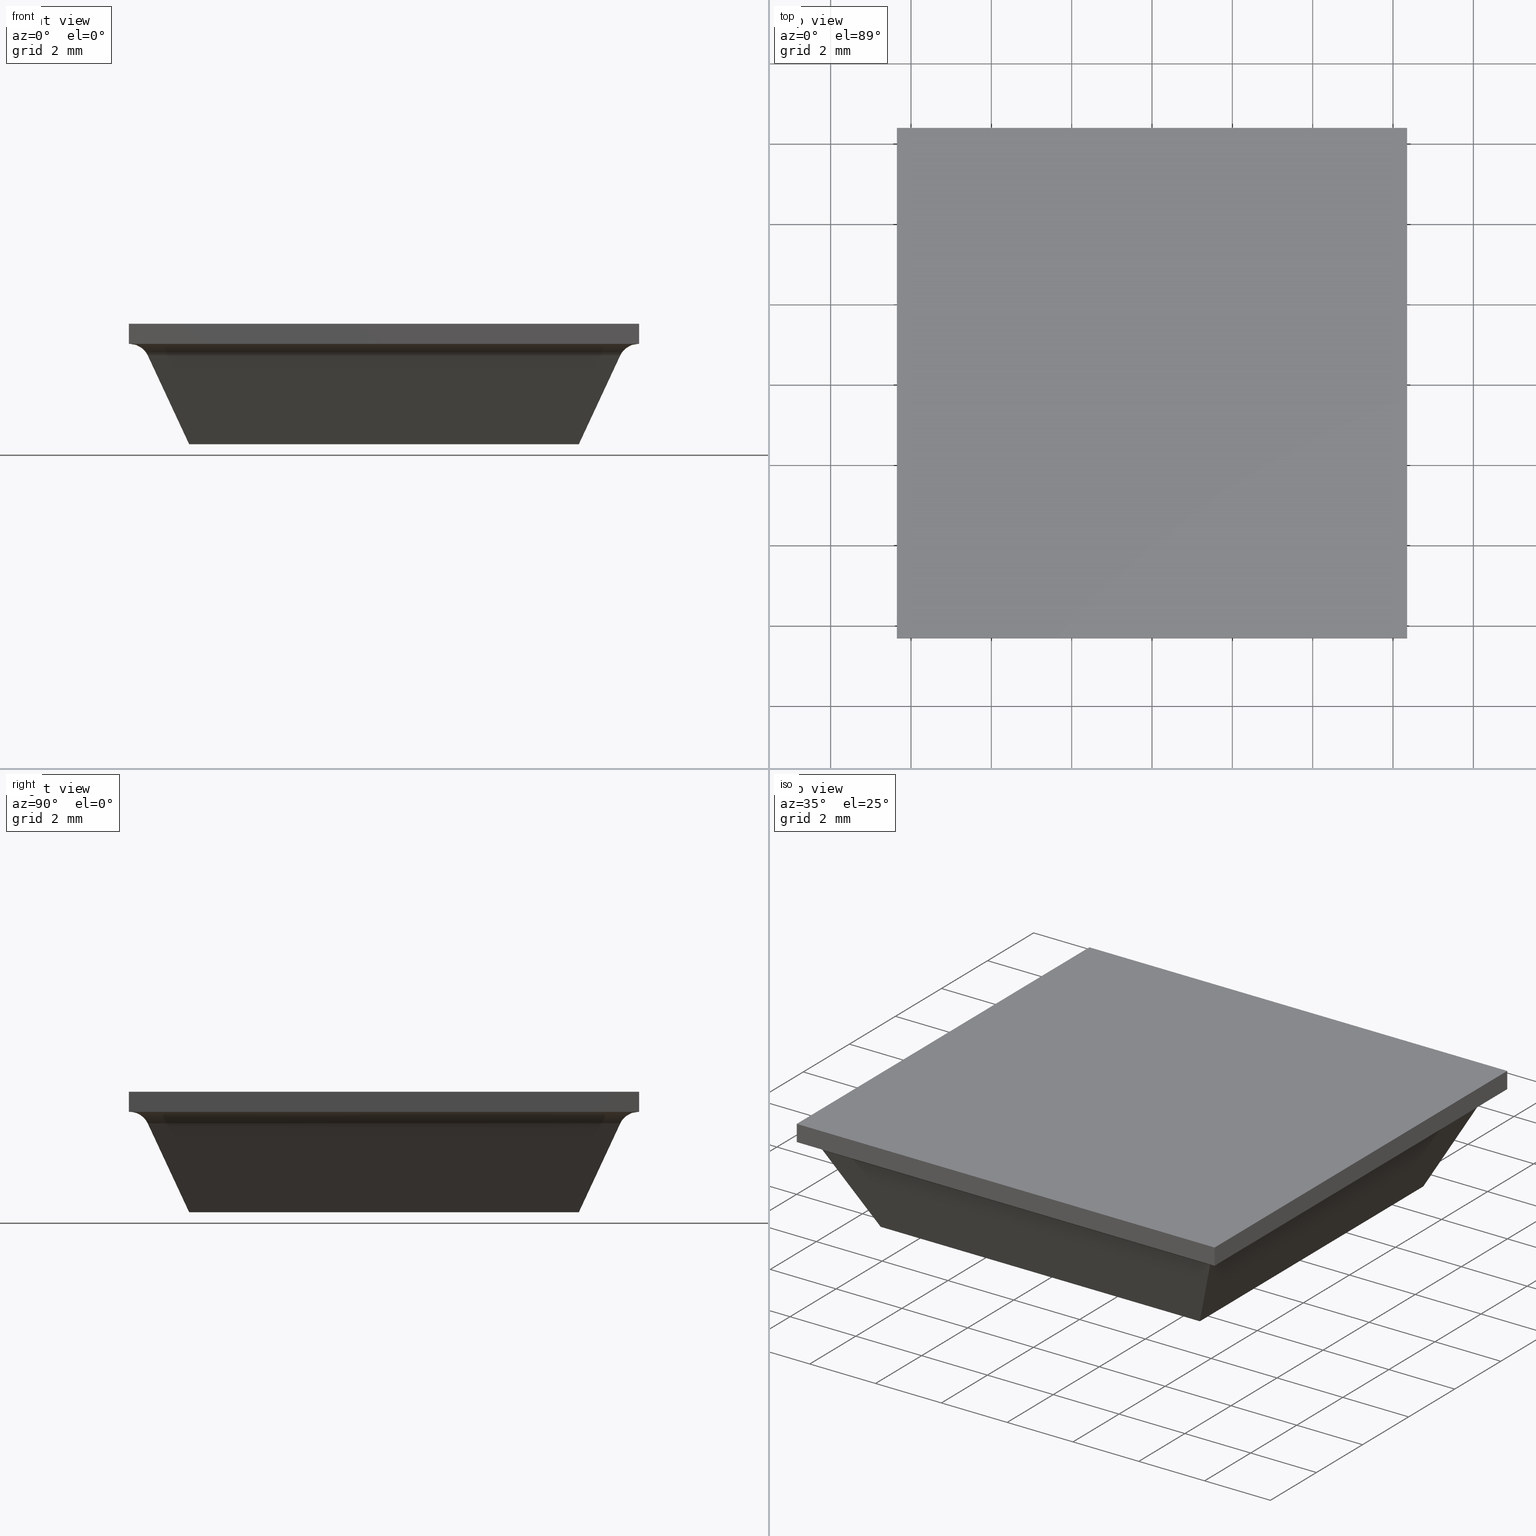
[diagram: canonical four-view strip — front | top / right | iso, engineering-drawing reading convention]
A machine part, canonical four-view strip (front | top / right | iso — engineering-drawing reading convention). The complete STEP part file that produces these views, byte-faithful:
ISO-10303-21;
HEADER;
/****************************************************************
 * Generated by software with PDE/Lib inside                    *
 * PDElib Version 4.4.1-0003, patched  Thursday August 19 11:58 *
 * International Technegroup Inc. (www.iti-oh.com)              *
 ****************************************************************/
FILE_DESCRIPTION((''),'2;1');
FILE_NAME('','2005-12-14T15:44:28',(''),(''),'','CADfix','');
FILE_SCHEMA(('AUTOMOTIVE_DESIGN'));
ENDSEC;
DATA;
#5=APPLICATION_CONTEXT('automotive design');
#6=APPLICATION_PROTOCOL_DEFINITION('Draft International Standard','automotive_design',1998,#5);
#7=PRODUCT_CONTEXT('None',#5,'mechanical');
#8=PRODUCT('rubber foot','','None',(#7));
#9=PRODUCT_RELATED_PRODUCT_CATEGORY('part','description',(#8));
#10=PRODUCT_DEFINITION_FORMATION('None','None',#8);
#11=PRODUCT_DEFINITION_CONTEXT('part definition',#5,'design');
#12=PRODUCT_DEFINITION('None','None',#10,#11);
#18=(NAMED_UNIT(*)PLANE_ANGLE_UNIT()SI_UNIT($,.RADIAN.));
#19=DIMENSIONAL_EXPONENTS(0.0,0.0,0.0,0.0,0.0,0.0,0.0);
#20=PLANE_ANGLE_MEASURE_WITH_UNIT(PLANE_ANGLE_MEASURE(0.017453292500000),#18);
#24=(CONVERSION_BASED_UNIT('DEGREE',#20)NAMED_UNIT(#19)PLANE_ANGLE_UNIT());
#28=(NAMED_UNIT(*)SI_UNIT($,.STERADIAN.)SOLID_ANGLE_UNIT());
#32=(LENGTH_UNIT()NAMED_UNIT(*)SI_UNIT(.MILLI.,.METRE.));
#34=UNCERTAINTY_MEASURE_WITH_UNIT(LENGTH_MEASURE(0.001000000000000),#32,'DISTANCE_ACCURACY_VALUE','');
#36=(GEOMETRIC_REPRESENTATION_CONTEXT(3)GLOBAL_UNCERTAINTY_ASSIGNED_CONTEXT((#34))GLOBAL_UNIT_ASSIGNED_CONTEXT((#24,#28,#32))REPRESENTATION_CONTEXT('None','None'));
#37=AXIS2_PLACEMENT_3D('',#38,#39,#40);
#38=CARTESIAN_POINT('',(0.0,0.0,0.0));
#39=DIRECTION('',(0.0,0.0,1.0));
#40=DIRECTION('',(1.0,0.0,0.0));
#41=ADVANCED_BREP_SHAPE_REPRESENTATION('',(#37,#467),#36);
#42=PRODUCT_DEFINITION_SHAPE('','',#12);
#43=SHAPE_DEFINITION_REPRESENTATION(#42,#41);
#44=CARTESIAN_POINT('',(-6.356113588619676,6.651019152271369,2.499524113393430));
#45=CARTESIAN_POINT('',(-6.356113588619676,-6.658937032214548,2.499524113393430));
#46=CARTESIAN_POINT('',(-6.002646650900663,6.651019152271369,2.514956770922362));
#47=CARTESIAN_POINT('',(-6.002646650900663,-6.658937032214547,2.514956770922362));
#48=CARTESIAN_POINT('',(-5.870493257436940,6.651019152271369,2.186760909317002));
#49=CARTESIAN_POINT('',(-5.870493257436940,-6.658937032214548,2.186760909317002));
#57=(BOUNDED_SURFACE()B_SPLINE_SURFACE(1,2,((#44,#46,#48),(#45,#47,#49)),.UNSPECIFIED.,.F.,.F.,.U.)B_SPLINE_SURFACE_WITH_KNOTS((2,2),(3,3),(0.0,13.309956184485920),(0.0,0.978809905743040),.UNSPECIFIED.)GEOMETRIC_REPRESENTATION_ITEM()RATIONAL_B_SPLINE_SURFACE(((1.0,0.813063942265620,0.992077614633168),(1.0,0.813063942265620,0.992077614633168)))REPRESENTATION_ITEM('')SURFACE());
#58=CARTESIAN_POINT('',(-5.881150035810770,-5.881150035810910,2.211309076796455));
#59=VERTEX_POINT('',#58);
#60=CARTESIAN_POINT('',(-6.334303954544160,-6.334303954544160,2.500000000000000));
#61=VERTEX_POINT('',#60);
#62=CARTESIAN_POINT('',(-5.881150035810770,-5.881150035810910,2.211309076796455));
#63=CARTESIAN_POINT('',(-6.015768782200882,-6.015768782200882,2.500000000000001));
#64=CARTESIAN_POINT('',(-6.334303954544160,-6.334303954544160,2.500000000000000));
#72=(BOUNDED_CURVE()B_SPLINE_CURVE(2,(#62,#63,#64),.UNSPECIFIED.,.F.,.U.)CURVE()GEOMETRIC_REPRESENTATION_ITEM()QUASI_UNIFORM_CURVE()RATIONAL_B_SPLINE_CURVE((1.0,0.843391413755473,1.0))REPRESENTATION_ITEM(''));
#73=EDGE_CURVE('',#59,#61,#72,.T.);
#74=ORIENTED_EDGE('',*,*,#73,.T.);
#75=CARTESIAN_POINT('',(-6.334303954544160,6.334303954544160,2.500000000000000));
#76=VERTEX_POINT('',#75);
#77=CARTESIAN_POINT('',(-6.334303954544160,6.334303954544160,2.500000000000000));
#78=CARTESIAN_POINT('',(-6.334303954544160,-6.334303954544160,2.500000000000000));
#79=QUASI_UNIFORM_CURVE('',1,(#77,#78),.UNSPECIFIED.,.F.,.U.);
#80=EDGE_CURVE('',#76,#61,#79,.T.);
#81=ORIENTED_EDGE('',*,*,#80,.F.);
#82=CARTESIAN_POINT('',(-5.881150035810800,5.881150035810720,2.211309076796510));
#83=VERTEX_POINT('',#82);
#84=CARTESIAN_POINT('',(-6.334303954544160,6.334303954544160,2.500000000000000));
#85=CARTESIAN_POINT('',(-6.015768782200872,6.015768782200872,2.500000000000001));
#86=CARTESIAN_POINT('',(-5.881150035810800,5.881150035810720,2.211309076796510));
#94=(BOUNDED_CURVE()B_SPLINE_CURVE(2,(#84,#85,#86),.UNSPECIFIED.,.F.,.U.)CURVE()GEOMETRIC_REPRESENTATION_ITEM()QUASI_UNIFORM_CURVE()RATIONAL_B_SPLINE_CURVE((1.0,0.843391413755463,1.0))REPRESENTATION_ITEM(''));
#95=EDGE_CURVE('',#76,#83,#94,.T.);
#96=ORIENTED_EDGE('',*,*,#95,.T.);
#97=CARTESIAN_POINT('',(-5.881150035810770,-5.881150035810910,2.211309076796455));
#98=CARTESIAN_POINT('',(-5.881150035810800,5.881150035810720,2.211309076796510));
#99=QUASI_UNIFORM_CURVE('',1,(#97,#98),.UNSPECIFIED.,.F.,.U.);
#100=EDGE_CURVE('',#59,#83,#99,.T.);
#101=ORIENTED_EDGE('',*,*,#100,.F.);
#102=EDGE_LOOP('',(#74,#81,#96,#101));
#103=FACE_OUTER_BOUND('',#102,.T.);
#104=ADVANCED_FACE('',(#103),#57,.F.);
#105=CARTESIAN_POINT('',(6.651019152271369,6.356113588619705,2.499524113393429));
#106=CARTESIAN_POINT('',(-6.658937032214548,6.356113588619705,2.499524113393429));
#107=CARTESIAN_POINT('',(6.651019152271369,6.002646650900690,2.514956770922382));
#108=CARTESIAN_POINT('',(-6.658937032214547,6.002646650900690,2.514956770922382));
#109=CARTESIAN_POINT('',(6.651019152271369,5.870493257436951,2.186760909317028));
#110=CARTESIAN_POINT('',(-6.658937032214548,5.870493257436951,2.186760909317028));
#118=(BOUNDED_SURFACE()B_SPLINE_SURFACE(1,2,((#105,#107,#109),(#106,#108,#110)),.UNSPECIFIED.,.F.,.F.,.U.)B_SPLINE_SURFACE_WITH_KNOTS((2,2),(3,3),(0.0,13.309956184485920),(0.0,0.978809905743040),.UNSPECIFIED.)GEOMETRIC_REPRESENTATION_ITEM()RATIONAL_B_SPLINE_SURFACE(((1.0,0.813063942265620,0.992077614633168),(1.0,0.813063942265620,0.992077614633168)))REPRESENTATION_ITEM('')SURFACE());
#119=CARTESIAN_POINT('',(6.334303954544160,6.334303954544160,2.500000000000000));
#120=VERTEX_POINT('',#119);
#121=CARTESIAN_POINT('',(5.881150035810720,5.881150035810800,2.211309076796510));
#122=VERTEX_POINT('',#121);
#123=CARTESIAN_POINT('',(6.334303954544160,6.334303954544160,2.500000000000000));
#124=CARTESIAN_POINT('',(6.015768782200872,6.015768782200872,2.500000000000001));
#125=CARTESIAN_POINT('',(5.881150035810720,5.881150035810800,2.211309076796510));
#133=(BOUNDED_CURVE()B_SPLINE_CURVE(2,(#123,#124,#125),.UNSPECIFIED.,.F.,.U.)CURVE()GEOMETRIC_REPRESENTATION_ITEM()QUASI_UNIFORM_CURVE()RATIONAL_B_SPLINE_CURVE((1.0,0.843391413755463,1.0))REPRESENTATION_ITEM(''));
#134=EDGE_CURVE('',#120,#122,#133,.T.);
#135=ORIENTED_EDGE('',*,*,#134,.T.);
#136=CARTESIAN_POINT('',(-5.881150035810800,5.881150035810720,2.211309076796510));
#137=CARTESIAN_POINT('',(5.881150035810720,5.881150035810800,2.211309076796510));
#138=QUASI_UNIFORM_CURVE('',1,(#136,#137),.UNSPECIFIED.,.F.,.U.);
#139=EDGE_CURVE('',#83,#122,#138,.T.);
#140=ORIENTED_EDGE('',*,*,#139,.F.);
#141=ORIENTED_EDGE('',*,*,#95,.F.);
#142=CARTESIAN_POINT('',(6.334303954544160,6.334303954544160,2.500000000000000));
#143=CARTESIAN_POINT('',(-6.334303954544160,6.334303954544160,2.500000000000000));
#144=QUASI_UNIFORM_CURVE('',1,(#142,#143),.UNSPECIFIED.,.F.,.U.);
#145=EDGE_CURVE('',#120,#76,#144,.T.);
#146=ORIENTED_EDGE('',*,*,#145,.F.);
#147=EDGE_LOOP('',(#135,#140,#141,#146));
#148=FACE_OUTER_BOUND('',#147,.T.);
#149=ADVANCED_FACE('',(#148),#118,.F.);
#150=CARTESIAN_POINT('',(-6.651019152271369,-6.347392428698098,2.499828662487778));
#151=CARTESIAN_POINT('',(6.658937032214548,-6.347392428698098,2.499828662487778));
#152=CARTESIAN_POINT('',(-6.651019152271368,-6.000215764091201,2.508919803397826));
#153=CARTESIAN_POINT('',(6.658937032214548,-6.000215764091201,2.508919803397826));
#154=CARTESIAN_POINT('',(-6.651019152271369,-5.870493255542651,2.186760904612636));
#155=CARTESIAN_POINT('',(6.658937032214548,-5.870493255542651,2.186760904612636));
#163=(BOUNDED_SURFACE()B_SPLINE_SURFACE(1,2,((#150,#152,#154),(#151,#153,#155)),.UNSPECIFIED.,.F.,.F.,.U.)B_SPLINE_SURFACE_WITH_KNOTS((2,2),(3,3),(0.0,13.309956184485920),(0.0,0.993420241738949),.UNSPECIFIED.)GEOMETRIC_REPRESENTATION_ITEM()RATIONAL_B_SPLINE_SURFACE(((1.0,0.820341980119575,0.997635787319055),(1.0,0.820341980119575,0.997635787319055)))REPRESENTATION_ITEM('')SURFACE());
#164=CARTESIAN_POINT('',(5.881150035810800,-5.881150035810720,2.211309076796510));
#165=VERTEX_POINT('',#164);
#166=CARTESIAN_POINT('',(6.334303954544160,-6.334303954544160,2.500000000000000));
#167=VERTEX_POINT('',#166);
#168=CARTESIAN_POINT('',(5.881150035810800,-5.881150035810720,2.211309076796510));
#169=CARTESIAN_POINT('',(6.015768782200871,-6.015768782200871,2.500000000000000));
#170=CARTESIAN_POINT('',(6.334303954544160,-6.334303954544160,2.500000000000000));
#178=(BOUNDED_CURVE()B_SPLINE_CURVE(2,(#168,#169,#170),.UNSPECIFIED.,.F.,.U.)CURVE()GEOMETRIC_REPRESENTATION_ITEM()QUASI_UNIFORM_CURVE()RATIONAL_B_SPLINE_CURVE((1.0,0.843391413755462,1.0))REPRESENTATION_ITEM(''));
#179=EDGE_CURVE('',#165,#167,#178,.T.);
#180=ORIENTED_EDGE('',*,*,#179,.T.);
#181=CARTESIAN_POINT('',(-6.334303954544160,-6.334303954544160,2.500000000000000));
#182=CARTESIAN_POINT('',(6.334303954544160,-6.334303954544160,2.500000000000000));
#183=QUASI_UNIFORM_CURVE('',1,(#181,#182),.UNSPECIFIED.,.F.,.U.);
#184=EDGE_CURVE('',#61,#167,#183,.T.);
#185=ORIENTED_EDGE('',*,*,#184,.F.);
#186=ORIENTED_EDGE('',*,*,#73,.F.);
#187=CARTESIAN_POINT('',(5.881150035810800,-5.881150035810720,2.211309076796510));
#188=CARTESIAN_POINT('',(-5.881150035810770,-5.881150035810910,2.211309076796455));
#189=QUASI_UNIFORM_CURVE('',1,(#187,#188),.UNSPECIFIED.,.F.,.U.);
#190=EDGE_CURVE('',#165,#59,#189,.T.);
#191=ORIENTED_EDGE('',*,*,#190,.F.);
#192=EDGE_LOOP('',(#180,#185,#186,#191));
#193=FACE_OUTER_BOUND('',#192,.T.);
#194=ADVANCED_FACE('',(#193),#163,.F.);
#195=CARTESIAN_POINT('',(6.356113588619705,-6.651019152271369,2.499524113393429));
#196=CARTESIAN_POINT('',(6.356113588619705,6.658937032214548,2.499524113393429));
#197=CARTESIAN_POINT('',(6.002646650900690,-6.651019152271369,2.514956770922382));
#198=CARTESIAN_POINT('',(6.002646650900690,6.658937032214547,2.514956770922382));
#199=CARTESIAN_POINT('',(5.870493257436951,-6.651019152271369,2.186760909317028));
#200=CARTESIAN_POINT('',(5.870493257436951,6.658937032214548,2.186760909317028));
#208=(BOUNDED_SURFACE()B_SPLINE_SURFACE(1,2,((#195,#197,#199),(#196,#198,#200)),.UNSPECIFIED.,.F.,.F.,.U.)B_SPLINE_SURFACE_WITH_KNOTS((2,2),(3,3),(0.0,13.309956184485920),(0.0,0.978809905743040),.UNSPECIFIED.)GEOMETRIC_REPRESENTATION_ITEM()RATIONAL_B_SPLINE_SURFACE(((1.0,0.813063942265620,0.992077614633168),(1.0,0.813063942265620,0.992077614633168)))REPRESENTATION_ITEM('')SURFACE());
#209=ORIENTED_EDGE('',*,*,#134,.F.);
#210=CARTESIAN_POINT('',(6.334303954544160,-6.334303954544160,2.500000000000000));
#211=CARTESIAN_POINT('',(6.334303954544160,6.334303954544160,2.500000000000000));
#212=QUASI_UNIFORM_CURVE('',1,(#210,#211),.UNSPECIFIED.,.F.,.U.);
#213=EDGE_CURVE('',#167,#120,#212,.T.);
#214=ORIENTED_EDGE('',*,*,#213,.F.);
#215=ORIENTED_EDGE('',*,*,#179,.F.);
#216=CARTESIAN_POINT('',(5.881150035810720,5.881150035810800,2.211309076796510));
#217=CARTESIAN_POINT('',(5.881150035810800,-5.881150035810720,2.211309076796510));
#218=QUASI_UNIFORM_CURVE('',1,(#216,#217),.UNSPECIFIED.,.F.,.U.);
#219=EDGE_CURVE('',#122,#165,#218,.T.);
#220=ORIENTED_EDGE('',*,*,#219,.F.);
#221=EDGE_LOOP('',(#209,#214,#215,#220));
#222=FACE_OUTER_BOUND('',#221,.T.);
#223=ADVANCED_FACE('',(#222),#208,.F.);
#224=CARTESIAN_POINT('',(-6.468677122422763,-5.932656065218259,2.321764147720237));
#225=CARTESIAN_POINT('',(-6.468677122422763,-4.798494025907728,-0.110454952299864));
#226=CARTESIAN_POINT('',(6.468677227585948,-5.932656065218259,2.321764147720237));
#227=CARTESIAN_POINT('',(6.468677227585948,-4.798494025907728,-0.110454952299864));
#228=B_SPLINE_SURFACE_WITH_KNOTS('',1,1,((#224,#226),(#225,#227)),.UNSPECIFIED.,.F.,.F.,.U.,(2,2),(2,2),(0.0,2.683656699713213),(0.0,12.937354350008709),.UNSPECIFIED.);
#229=CARTESIAN_POINT('',(4.850000000000001,-4.850000000000001,0.0));
#230=VERTEX_POINT('',#229);
#231=CARTESIAN_POINT('',(5.881150035810800,-5.881150035810720,2.211309076796510));
#232=CARTESIAN_POINT('',(4.850000000000001,-4.850000000000001,0.0));
#233=QUASI_UNIFORM_CURVE('',1,(#231,#232),.UNSPECIFIED.,.F.,.U.);
#234=EDGE_CURVE('',#165,#230,#233,.T.);
#235=ORIENTED_EDGE('',*,*,#234,.F.);
#236=ORIENTED_EDGE('',*,*,#190,.T.);
#237=CARTESIAN_POINT('',(-4.850000000000001,-4.850000000000001,0.0));
#238=VERTEX_POINT('',#237);
#239=CARTESIAN_POINT('',(-4.850000000000001,-4.850000000000001,0.0));
#240=CARTESIAN_POINT('',(-5.881150035810770,-5.881150035810910,2.211309076796455));
#241=QUASI_UNIFORM_CURVE('',1,(#239,#240),.UNSPECIFIED.,.F.,.U.);
#242=EDGE_CURVE('',#238,#59,#241,.T.);
#243=ORIENTED_EDGE('',*,*,#242,.F.);
#244=CARTESIAN_POINT('',(4.850000000000001,-4.850000000000001,0.0));
#245=CARTESIAN_POINT('',(-4.850000000000001,-4.850000000000001,0.0));
#246=QUASI_UNIFORM_CURVE('',1,(#244,#245),.UNSPECIFIED.,.F.,.U.);
#247=EDGE_CURVE('',#230,#238,#246,.T.);
#248=ORIENTED_EDGE('',*,*,#247,.F.);
#249=EDGE_LOOP('',(#235,#236,#243,#248));
#250=FACE_OUTER_BOUND('',#249,.T.);
#251=ADVANCED_FACE('',(#250),#228,.T.);
#252=CARTESIAN_POINT('',(6.984364856166421,-6.984364856166422,2.500000000000000));
#253=CARTESIAN_POINT('',(-6.984365310353813,-6.984364856166422,2.500000000000000));
#254=CARTESIAN_POINT('',(6.984364856166421,6.984365310353814,2.500000000000000));
#255=CARTESIAN_POINT('',(-6.984365310353814,6.984365310353814,2.500000000000000));
#256=B_SPLINE_SURFACE_WITH_KNOTS('',1,1,((#252,#254),(#253,#255)),.UNSPECIFIED.,.F.,.F.,.U.,(2,2),(2,2),(0.0,13.968730166520240),(0.0,13.968730166520240),.UNSPECIFIED.);
#257=CARTESIAN_POINT('',(6.350000000000000,-6.350000000000000,2.500000000000000));
#258=VERTEX_POINT('',#257);
#259=CARTESIAN_POINT('',(6.350000000000000,6.350000000000000,2.500000000000000));
#260=VERTEX_POINT('',#259);
#261=CARTESIAN_POINT('',(6.350000000000000,-6.350000000000000,2.500000000000000));
#262=CARTESIAN_POINT('',(6.350000000000000,6.350000000000000,2.500000000000000));
#263=QUASI_UNIFORM_CURVE('',1,(#261,#262),.UNSPECIFIED.,.F.,.U.);
#264=EDGE_CURVE('',#258,#260,#263,.T.);
#265=ORIENTED_EDGE('',*,*,#264,.F.);
#266=CARTESIAN_POINT('',(-6.350000000000000,-6.350000000000000,2.500000000000000));
#267=VERTEX_POINT('',#266);
#268=CARTESIAN_POINT('',(6.350000000000000,-6.350000000000000,2.500000000000000));
#269=CARTESIAN_POINT('',(-6.350000000000000,-6.350000000000000,2.500000000000000));
#270=QUASI_UNIFORM_CURVE('',1,(#268,#269),.UNSPECIFIED.,.F.,.U.);
#271=EDGE_CURVE('',#258,#267,#270,.T.);
#272=ORIENTED_EDGE('',*,*,#271,.T.);
#273=CARTESIAN_POINT('',(-6.350000000000000,6.350000000000000,2.500000000000000));
#274=VERTEX_POINT('',#273);
#275=CARTESIAN_POINT('',(-6.350000000000000,-6.350000000000000,2.500000000000000));
#276=CARTESIAN_POINT('',(-6.350000000000000,6.350000000000000,2.500000000000000));
#277=QUASI_UNIFORM_CURVE('',1,(#275,#276),.UNSPECIFIED.,.F.,.U.);
#278=EDGE_CURVE('',#267,#274,#277,.T.);
#279=ORIENTED_EDGE('',*,*,#278,.T.);
#280=CARTESIAN_POINT('',(6.350000000000000,6.350000000000000,2.500000000000000));
#281=CARTESIAN_POINT('',(-6.350000000000000,6.350000000000000,2.500000000000000));
#282=QUASI_UNIFORM_CURVE('',1,(#280,#281),.UNSPECIFIED.,.F.,.U.);
#283=EDGE_CURVE('',#260,#274,#282,.T.);
#284=ORIENTED_EDGE('',*,*,#283,.F.);
#285=EDGE_LOOP('',(#265,#272,#279,#284));
#286=FACE_OUTER_BOUND('',#285,.T.);
#287=ORIENTED_EDGE('',*,*,#145,.T.);
#288=ORIENTED_EDGE('',*,*,#80,.T.);
#289=ORIENTED_EDGE('',*,*,#184,.T.);
#290=ORIENTED_EDGE('',*,*,#213,.T.);
#291=EDGE_LOOP('',(#287,#288,#289,#290));
#292=FACE_BOUND('',#291,.T.);
#293=ADVANCED_FACE('',(#286,#292),#256,.T.);
#294=CARTESIAN_POINT('',(-6.984364856166421,-6.984364856166422,3.0));
#295=CARTESIAN_POINT('',(6.984365310353813,-6.984364856166422,3.0));
#296=CARTESIAN_POINT('',(-6.984364856166421,6.984365310353814,3.0));
#297=CARTESIAN_POINT('',(6.984365310353814,6.984365310353814,3.0));
#298=B_SPLINE_SURFACE_WITH_KNOTS('',1,1,((#294,#296),(#295,#297)),.UNSPECIFIED.,.F.,.F.,.U.,(2,2),(2,2),(0.0,13.968730166520240),(0.0,13.968730166520240),.UNSPECIFIED.);
#299=CARTESIAN_POINT('',(-6.350000000000000,-6.350000000000000,3.0));
#300=VERTEX_POINT('',#299);
#301=CARTESIAN_POINT('',(6.350000000000000,-6.350000000000000,3.0));
#302=VERTEX_POINT('',#301);
#303=CARTESIAN_POINT('',(-6.350000000000000,-6.350000000000000,3.0));
#304=CARTESIAN_POINT('',(6.350000000000000,-6.350000000000000,3.0));
#305=QUASI_UNIFORM_CURVE('',1,(#303,#304),.UNSPECIFIED.,.F.,.U.);
#306=EDGE_CURVE('',#300,#302,#305,.T.);
#307=ORIENTED_EDGE('',*,*,#306,.T.);
#308=CARTESIAN_POINT('',(6.350000000000000,6.350000000000000,3.0));
#309=VERTEX_POINT('',#308);
#310=CARTESIAN_POINT('',(6.350000000000000,-6.350000000000000,3.0));
#311=CARTESIAN_POINT('',(6.350000000000000,6.350000000000000,3.0));
#312=QUASI_UNIFORM_CURVE('',1,(#310,#311),.UNSPECIFIED.,.F.,.U.);
#313=EDGE_CURVE('',#302,#309,#312,.T.);
#314=ORIENTED_EDGE('',*,*,#313,.T.);
#315=CARTESIAN_POINT('',(-6.350000000000000,6.350000000000000,3.0));
#316=VERTEX_POINT('',#315);
#317=CARTESIAN_POINT('',(6.350000000000000,6.350000000000000,3.0));
#318=CARTESIAN_POINT('',(-6.350000000000000,6.350000000000000,3.0));
#319=QUASI_UNIFORM_CURVE('',1,(#317,#318),.UNSPECIFIED.,.F.,.U.);
#320=EDGE_CURVE('',#309,#316,#319,.T.);
#321=ORIENTED_EDGE('',*,*,#320,.T.);
#322=CARTESIAN_POINT('',(-6.350000000000000,6.350000000000000,3.0));
#323=CARTESIAN_POINT('',(-6.350000000000000,-6.350000000000000,3.0));
#324=QUASI_UNIFORM_CURVE('',1,(#322,#323),.UNSPECIFIED.,.F.,.U.);
#325=EDGE_CURVE('',#316,#300,#324,.T.);
#326=ORIENTED_EDGE('',*,*,#325,.T.);
#327=EDGE_LOOP('',(#307,#314,#321,#326));
#328=FACE_OUTER_BOUND('',#327,.T.);
#329=ADVANCED_FACE('',(#328),#298,.T.);
#330=CARTESIAN_POINT('',(-6.350000000000000,-6.984364856166422,3.024974999030904));
#331=CARTESIAN_POINT('',(-6.350000000000000,-6.984364856166422,2.475024987558052));
#332=CARTESIAN_POINT('',(-6.350000000000000,6.984365310353814,3.024974999030904));
#333=CARTESIAN_POINT('',(-6.350000000000000,6.984365310353814,2.475024987558052));
#334=B_SPLINE_SURFACE_WITH_KNOTS('',1,1,((#330,#332),(#331,#333)),.UNSPECIFIED.,.F.,.F.,.U.,(2,2),(2,2),(0.041708334948495,0.958291687403247),(0.0,13.968730166520240),.UNSPECIFIED.);
#335=ORIENTED_EDGE('',*,*,#278,.F.);
#336=CARTESIAN_POINT('',(-6.350000000000000,-6.350000000000000,3.0));
#337=CARTESIAN_POINT('',(-6.350000000000000,-6.350000000000000,2.500000000000000));
#338=QUASI_UNIFORM_CURVE('',1,(#336,#337),.UNSPECIFIED.,.F.,.U.);
#339=EDGE_CURVE('',#300,#267,#338,.T.);
#340=ORIENTED_EDGE('',*,*,#339,.F.);
#341=ORIENTED_EDGE('',*,*,#325,.F.);
#342=CARTESIAN_POINT('',(-6.350000000000000,6.350000000000000,3.0));
#343=CARTESIAN_POINT('',(-6.350000000000000,6.350000000000000,2.500000000000000));
#344=QUASI_UNIFORM_CURVE('',1,(#342,#343),.UNSPECIFIED.,.F.,.U.);
#345=EDGE_CURVE('',#316,#274,#344,.T.);
#346=ORIENTED_EDGE('',*,*,#345,.T.);
#347=EDGE_LOOP('',(#335,#340,#341,#346));
#348=FACE_OUTER_BOUND('',#347,.T.);
#349=ADVANCED_FACE('',(#348),#334,.F.);
#350=CARTESIAN_POINT('',(-6.984364856166422,6.350000000000000,3.024974999030904));
#351=CARTESIAN_POINT('',(-6.984364856166422,6.350000000000000,2.475024987558052));
#352=CARTESIAN_POINT('',(6.984365310353814,6.350000000000000,3.024974999030904));
#353=CARTESIAN_POINT('',(6.984365310353814,6.350000000000000,2.475024987558052));
#354=B_SPLINE_SURFACE_WITH_KNOTS('',1,1,((#350,#352),(#351,#353)),.UNSPECIFIED.,.F.,.F.,.U.,(2,2),(2,2),(0.041708334948495,0.958291687403247),(0.0,13.968730166520240),.UNSPECIFIED.);
#355=CARTESIAN_POINT('',(6.350000000000000,6.350000000000000,3.0));
#356=CARTESIAN_POINT('',(6.350000000000000,6.350000000000000,2.500000000000000));
#357=QUASI_UNIFORM_CURVE('',1,(#355,#356),.UNSPECIFIED.,.F.,.U.);
#358=EDGE_CURVE('',#309,#260,#357,.T.);
#359=ORIENTED_EDGE('',*,*,#358,.T.);
#360=ORIENTED_EDGE('',*,*,#283,.T.);
#361=ORIENTED_EDGE('',*,*,#345,.F.);
#362=ORIENTED_EDGE('',*,*,#320,.F.);
#363=EDGE_LOOP('',(#359,#360,#361,#362));
#364=FACE_OUTER_BOUND('',#363,.T.);
#365=ADVANCED_FACE('',(#364),#354,.F.);
#366=CARTESIAN_POINT('',(-6.468677122422789,4.798494034666431,-0.110454933516765));
#367=CARTESIAN_POINT('',(-6.468677122422789,5.932656084117161,2.321764188249071));
#368=CARTESIAN_POINT('',(6.468677227585866,4.798494034666431,-0.110454933516765));
#369=CARTESIAN_POINT('',(6.468677227585866,5.932656084117161,2.321764188249071));
#370=B_SPLINE_SURFACE_WITH_KNOTS('',1,1,((#366,#368),(#367,#369)),.UNSPECIFIED.,.F.,.F.,.U.,(2,2),(2,2),(0.0,2.683656723706974),(0.0,12.937354350008651),.UNSPECIFIED.);
#371=CARTESIAN_POINT('',(-4.850000000000001,4.850000000000001,0.0));
#372=VERTEX_POINT('',#371);
#373=CARTESIAN_POINT('',(-5.881150035810800,5.881150035810720,2.211309076796510));
#374=CARTESIAN_POINT('',(-4.850000000000001,4.850000000000001,0.0));
#375=QUASI_UNIFORM_CURVE('',1,(#373,#374),.UNSPECIFIED.,.F.,.U.);
#376=EDGE_CURVE('',#83,#372,#375,.T.);
#377=ORIENTED_EDGE('',*,*,#376,.F.);
#378=ORIENTED_EDGE('',*,*,#139,.T.);
#379=CARTESIAN_POINT('',(4.850000000000001,4.850000000000001,0.0));
#380=VERTEX_POINT('',#379);
#381=CARTESIAN_POINT('',(5.881150035810720,5.881150035810800,2.211309076796510));
#382=CARTESIAN_POINT('',(4.850000000000001,4.850000000000001,0.0));
#383=QUASI_UNIFORM_CURVE('',1,(#381,#382),.UNSPECIFIED.,.F.,.U.);
#384=EDGE_CURVE('',#122,#380,#383,.T.);
#385=ORIENTED_EDGE('',*,*,#384,.T.);
#386=CARTESIAN_POINT('',(-4.850000000000001,4.850000000000001,0.0));
#387=CARTESIAN_POINT('',(4.850000000000001,4.850000000000001,0.0));
#388=QUASI_UNIFORM_CURVE('',1,(#386,#387),.UNSPECIFIED.,.F.,.U.);
#389=EDGE_CURVE('',#372,#380,#388,.T.);
#390=ORIENTED_EDGE('',*,*,#389,.F.);
#391=EDGE_LOOP('',(#377,#378,#385,#390));
#392=FACE_OUTER_BOUND('',#391,.T.);
#393=ADVANCED_FACE('',(#392),#370,.T.);
#394=CARTESIAN_POINT('',(6.350000000000000,-6.984364856166422,2.475025000969097));
#395=CARTESIAN_POINT('',(6.350000000000000,-6.984364856166422,3.024975012441949));
#396=CARTESIAN_POINT('',(6.350000000000000,6.984365310353814,2.475025000969097));
#397=CARTESIAN_POINT('',(6.350000000000000,6.984365310353814,3.024975012441949));
#398=B_SPLINE_SURFACE_WITH_KNOTS('',1,1,((#394,#396),(#395,#397)),.UNSPECIFIED.,.F.,.F.,.U.,(2,2),(2,2),(0.041708334948495,0.958291687403247),(0.0,13.968730166520240),.UNSPECIFIED.);
#399=CARTESIAN_POINT('',(6.350000000000000,-6.350000000000000,3.0));
#400=CARTESIAN_POINT('',(6.350000000000000,-6.350000000000000,2.500000000000000));
#401=QUASI_UNIFORM_CURVE('',1,(#399,#400),.UNSPECIFIED.,.F.,.U.);
#402=EDGE_CURVE('',#302,#258,#401,.T.);
#403=ORIENTED_EDGE('',*,*,#402,.T.);
#404=ORIENTED_EDGE('',*,*,#264,.T.);
#405=ORIENTED_EDGE('',*,*,#358,.F.);
#406=ORIENTED_EDGE('',*,*,#313,.F.);
#407=EDGE_LOOP('',(#403,#404,#405,#406));
#408=FACE_OUTER_BOUND('',#407,.T.);
#409=ADVANCED_FACE('',(#408),#398,.F.);
#410=CARTESIAN_POINT('',(5.932656065218262,-6.468677122422708,2.321764147720240));
#411=CARTESIAN_POINT('',(4.798494025907729,-6.468677122422708,-0.110454952299864));
#412=CARTESIAN_POINT('',(5.932656065218263,6.468677227585945,2.321764147720240));
#413=CARTESIAN_POINT('',(4.798494025907729,6.468677227585945,-0.110454952299864));
#414=B_SPLINE_SURFACE_WITH_KNOTS('',1,1,((#410,#412),(#411,#413)),.UNSPECIFIED.,.F.,.F.,.U.,(2,2),(2,2),(0.0,2.683656699713217),(0.0,12.937354350008651),.UNSPECIFIED.);
#415=ORIENTED_EDGE('',*,*,#384,.F.);
#416=ORIENTED_EDGE('',*,*,#219,.T.);
#417=ORIENTED_EDGE('',*,*,#234,.T.);
#418=CARTESIAN_POINT('',(4.850000000000001,4.850000000000001,0.0));
#419=CARTESIAN_POINT('',(4.850000000000001,-4.850000000000001,0.0));
#420=QUASI_UNIFORM_CURVE('',1,(#418,#419),.UNSPECIFIED.,.F.,.U.);
#421=EDGE_CURVE('',#380,#230,#420,.T.);
#422=ORIENTED_EDGE('',*,*,#421,.F.);
#423=EDGE_LOOP('',(#415,#416,#417,#422));
#424=FACE_OUTER_BOUND('',#423,.T.);
#425=ADVANCED_FACE('',(#424),#414,.T.);
#426=CARTESIAN_POINT('',(-4.798494034666430,-6.468677122422904,-0.110454933516765));
#427=CARTESIAN_POINT('',(-5.932656084117160,-6.468677122422904,2.321764188249071));
#428=CARTESIAN_POINT('',(-4.798494034666430,6.468677227585872,-0.110454933516765));
#429=CARTESIAN_POINT('',(-5.932656084117161,6.468677227585872,2.321764188249071));
#430=B_SPLINE_SURFACE_WITH_KNOTS('',1,1,((#426,#428),(#427,#429)),.UNSPECIFIED.,.F.,.F.,.U.,(2,2),(2,2),(0.0,2.683656723706976),(0.0,12.937354350008780),.UNSPECIFIED.);
#431=ORIENTED_EDGE('',*,*,#242,.T.);
#432=ORIENTED_EDGE('',*,*,#100,.T.);
#433=ORIENTED_EDGE('',*,*,#376,.T.);
#434=CARTESIAN_POINT('',(-4.850000000000001,-4.850000000000001,0.0));
#435=CARTESIAN_POINT('',(-4.850000000000001,4.850000000000001,0.0));
#436=QUASI_UNIFORM_CURVE('',1,(#434,#435),.UNSPECIFIED.,.F.,.U.);
#437=EDGE_CURVE('',#238,#372,#436,.T.);
#438=ORIENTED_EDGE('',*,*,#437,.F.);
#439=EDGE_LOOP('',(#431,#432,#433,#438));
#440=FACE_OUTER_BOUND('',#439,.T.);
#441=ADVANCED_FACE('',(#440),#430,.T.);
#442=CARTESIAN_POINT('',(-6.984364856166422,-6.350000000000000,2.475025000969097));
#443=CARTESIAN_POINT('',(-6.984364856166422,-6.350000000000000,3.024975012441949));
#444=CARTESIAN_POINT('',(6.984365310353814,-6.350000000000000,2.475025000969097));
#445=CARTESIAN_POINT('',(6.984365310353814,-6.350000000000000,3.024975012441949));
#446=B_SPLINE_SURFACE_WITH_KNOTS('',1,1,((#442,#444),(#443,#445)),.UNSPECIFIED.,.F.,.F.,.U.,(2,2),(2,2),(0.041708334948495,0.958291687403247),(0.0,13.968730166520240),.UNSPECIFIED.);
#447=ORIENTED_EDGE('',*,*,#271,.F.);
#448=ORIENTED_EDGE('',*,*,#402,.F.);
#449=ORIENTED_EDGE('',*,*,#306,.F.);
#450=ORIENTED_EDGE('',*,*,#339,.T.);
#451=EDGE_LOOP('',(#447,#448,#449,#450));
#452=FACE_OUTER_BOUND('',#451,.T.);
#453=ADVANCED_FACE('',(#452),#446,.F.);
#454=CARTESIAN_POINT('',(-5.334514890142859,-5.334514890142859,0.0));
#455=CARTESIAN_POINT('',(5.334515237041892,-5.334514890142859,0.0));
#456=CARTESIAN_POINT('',(-5.334514890142858,5.334515237041892,0.0));
#457=CARTESIAN_POINT('',(5.334515237041892,5.334515237041892,0.0));
#458=B_SPLINE_SURFACE_WITH_KNOTS('',1,1,((#454,#456),(#455,#457)),.UNSPECIFIED.,.F.,.F.,.U.,(2,2),(2,2),(0.0,10.669030127184749),(0.0,10.669030127184749),.UNSPECIFIED.);
#459=ORIENTED_EDGE('',*,*,#247,.T.);
#460=ORIENTED_EDGE('',*,*,#437,.T.);
#461=ORIENTED_EDGE('',*,*,#389,.T.);
#462=ORIENTED_EDGE('',*,*,#421,.T.);
#463=EDGE_LOOP('',(#459,#460,#461,#462));
#464=FACE_OUTER_BOUND('',#463,.T.);
#465=ADVANCED_FACE('',(#464),#458,.F.);
#466=CLOSED_SHELL('',(#104,#149,#194,#223,#251,#293,#329,#349,#365,#393,#409,#425,#441,#453,#465));
#467=MANIFOLD_SOLID_BREP('rubber foot',#466);
#473=(NAMED_UNIT(*)PLANE_ANGLE_UNIT()SI_UNIT($,.RADIAN.));
#474=DIMENSIONAL_EXPONENTS(0.0,0.0,0.0,0.0,0.0,0.0,0.0);
#475=PLANE_ANGLE_MEASURE_WITH_UNIT(PLANE_ANGLE_MEASURE(0.017453292500000),#473);
#479=(CONVERSION_BASED_UNIT('DEGREE',#475)NAMED_UNIT(#474)PLANE_ANGLE_UNIT());
#483=(NAMED_UNIT(*)SI_UNIT($,.STERADIAN.)SOLID_ANGLE_UNIT());
#487=(LENGTH_UNIT()NAMED_UNIT(*)SI_UNIT(.MILLI.,.METRE.));
#489=UNCERTAINTY_MEASURE_WITH_UNIT(LENGTH_MEASURE(0.001000000000000),#487,'DISTANCE_ACCURACY_VALUE','');
#491=(GEOMETRIC_REPRESENTATION_CONTEXT(3)GLOBAL_UNCERTAINTY_ASSIGNED_CONTEXT((#489))GLOBAL_UNIT_ASSIGNED_CONTEXT((#479,#483,#487))REPRESENTATION_CONTEXT('','3D'));
ENDSEC;
END-ISO-10303-21;
